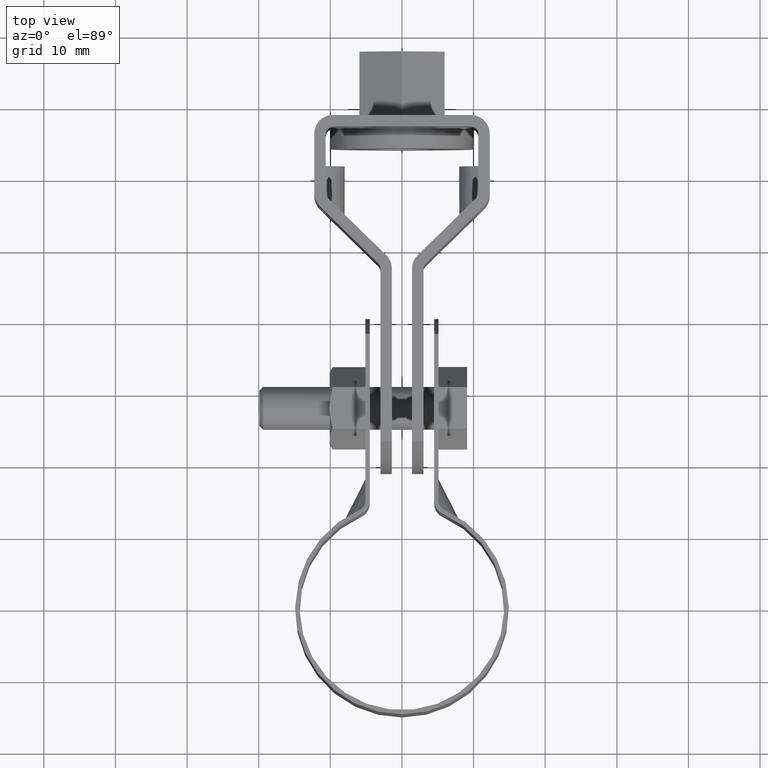
[diagram: clean part render]
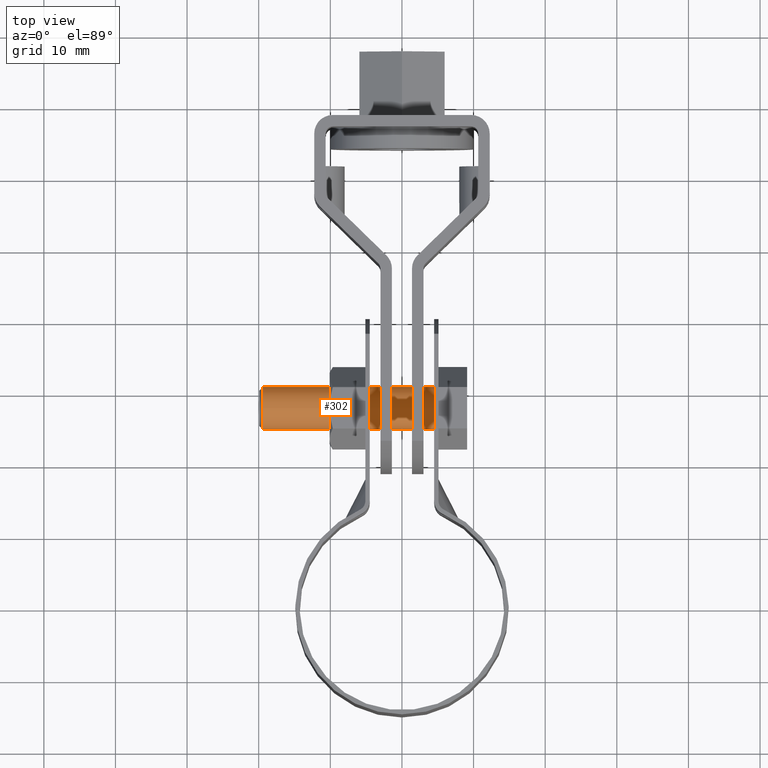
[diagram: same view with one face highlighted and labeled with its STEP entity id]
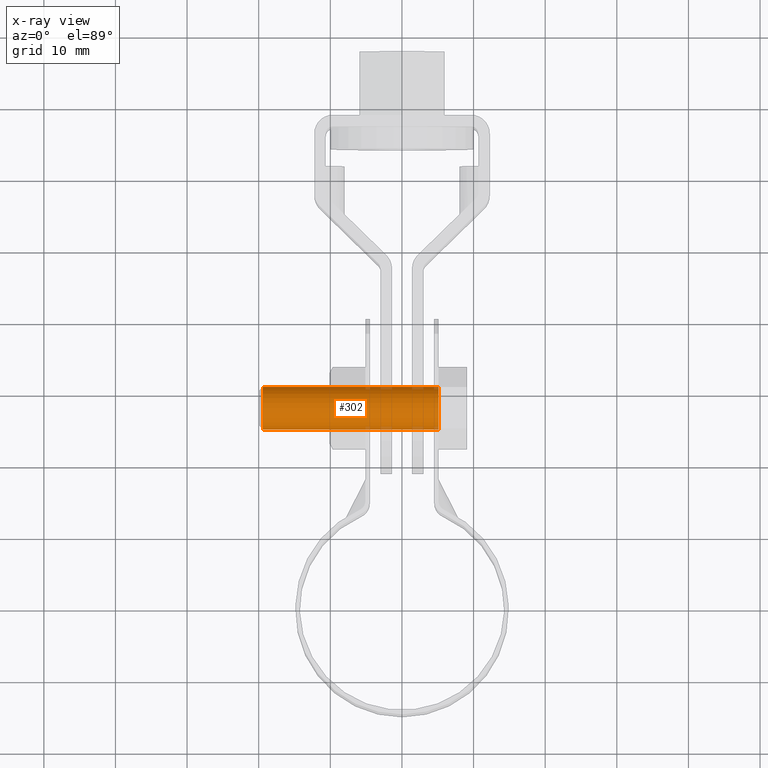
[diagram: x-ray of the same camera — body ghosted, the highlighted face saturated]
A machine part, top view. The second image highlights one B-rep face of the part: STEP entity #302.
The next image is the same camera in x-ray: the body ghosted, the highlighted face saturated — about 2% of this face is hidden behind the body in this view.
In plain terms, the highlighted cylindrical surface (bore or boss wall) has radius 3 mm, axis along (1, -0, 0).
Its self-contained STEP definition (entity closure, byte-faithful):
#302 = ADVANCED_FACE( '', ( #467, #468 ), #469, .T. );
#467 = FACE_OUTER_BOUND( '', #739, .T. );
#468 = FACE_OUTER_BOUND( '', #740, .T. );
#469 = CYLINDRICAL_SURFACE( '', #741, 3.00000000000000 );
#739 = EDGE_LOOP( '', ( #1230 ) );
#740 = EDGE_LOOP( '', ( #1231 ) );
#741 = AXIS2_PLACEMENT_3D( '', #1232, #1233, #1234 );
#1230 = ORIENTED_EDGE( '', *, *, #2034, .T. );
#1231 = ORIENTED_EDGE( '', *, *, #2028, .F. );
#1232 = CARTESIAN_POINT( '', ( 12.8770244734529, 28.0629679642768, -8.67361737988404E-016 ) );
#1233 = DIRECTION( '', ( 1.00000000000000, -6.06692130572647E-017, 0.000000000000000 ) );
#1234 = DIRECTION( '', ( 0.000000000000000, 0.000000000000000, 1.00000000000000 ) );
#2028 = EDGE_CURVE( '', #2411, #2411, #2412, .F. );
#2034 = EDGE_CURVE( '', #2421, #2421, #2422, .T. );
#2411 = VERTEX_POINT( '', #3063 );
#2412 = CIRCLE( '', #3064, 3.00000000000000 );
#2421 = VERTEX_POINT( '', #3078 );
#2422 = CIRCLE( '', #3079, 3.00000000000000 );
#3063 = CARTESIAN_POINT( '', ( 5.10000000000000, 28.0629679642768, 3.00000000000000 ) );
#3064 = AXIS2_PLACEMENT_3D( '', #3845, #3846, #3847 );
#3078 = CARTESIAN_POINT( '', ( -19.4000000000000, 28.0629679642768, -3.00000000000000 ) );
#3079 = AXIS2_PLACEMENT_3D( '', #3853, #3854, #3855 );
#3845 = CARTESIAN_POINT( '', ( 5.10000000000000, 28.0629679642768, -8.67361737988404E-016 ) );
#3846 = DIRECTION( '', ( -1.00000000000000, 6.06692130572647E-017, 0.000000000000000 ) );
#3847 = DIRECTION( '', ( 0.000000000000000, 0.000000000000000, 1.00000000000000 ) );
#3853 = CARTESIAN_POINT( '', ( -19.4000000000000, 28.0629679642768, -8.67361737988404E-016 ) );
#3854 = DIRECTION( '', ( 1.00000000000000, -6.06692130572647E-017, 0.000000000000000 ) );
#3855 = DIRECTION( '', ( 0.000000000000000, 0.000000000000000, -1.00000000000000 ) );